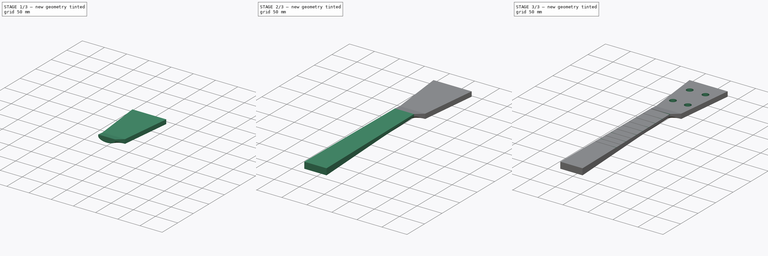
[diagram: build sequence overview — one tinted view per stage of 3, left to right]
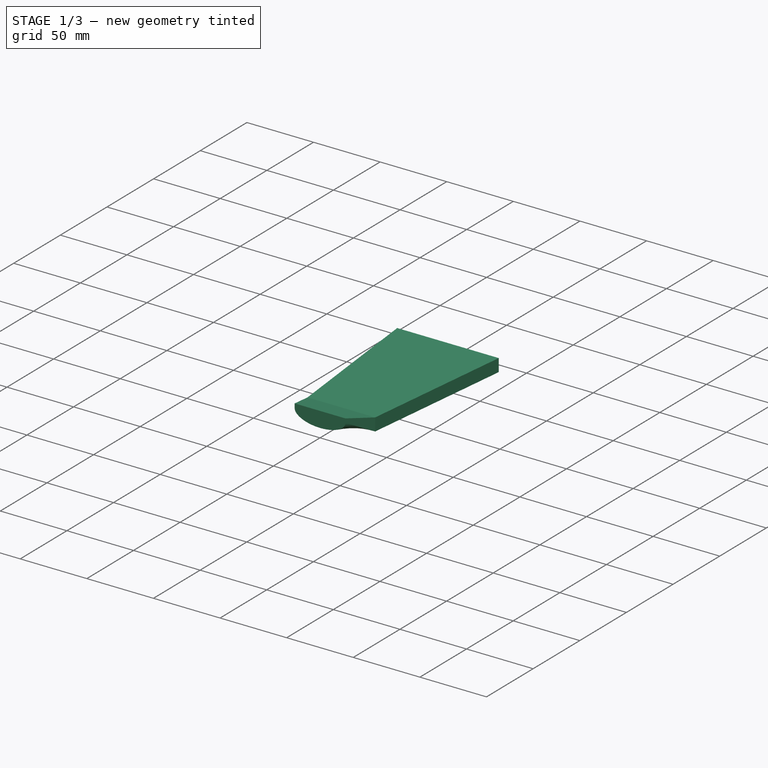
[diagram: stage 1 of 3 — iso view after this stage's code; geometry added in this stage tinted green]
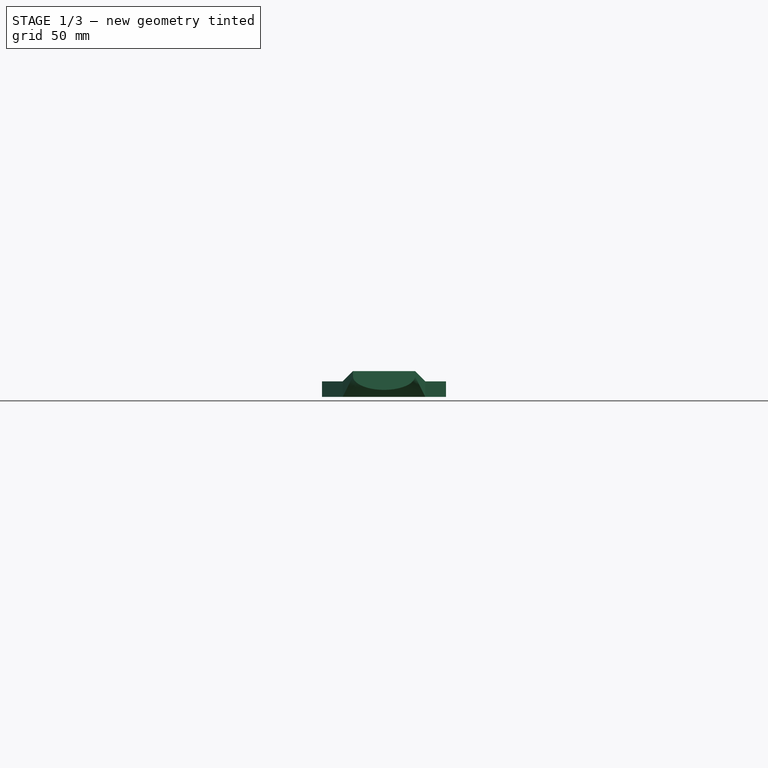
[diagram: stage 1 of 3 — front view after this stage's code; geometry added in this stage tinted green]
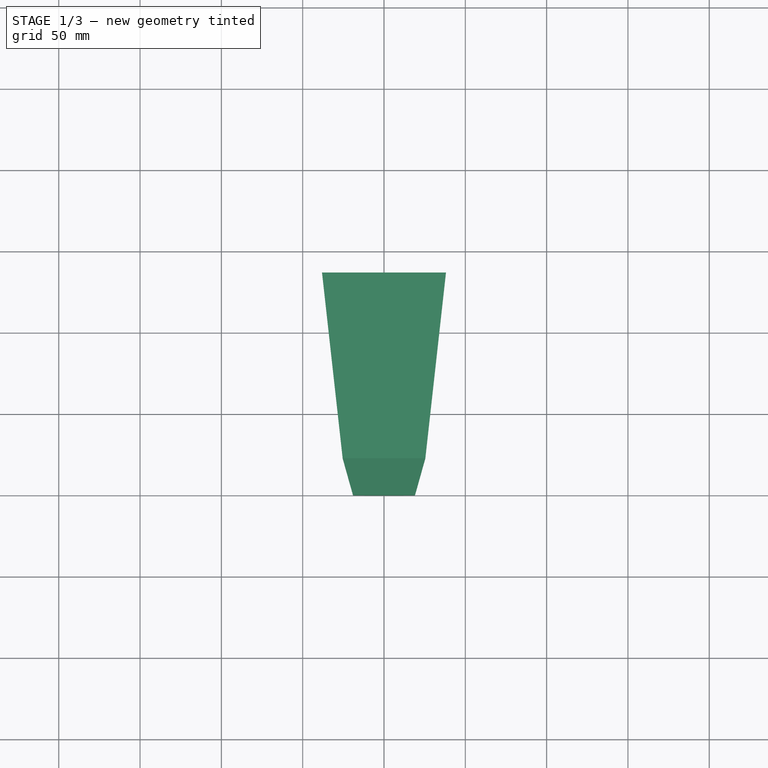
[diagram: stage 1 of 3 — top view after this stage's code; geometry added in this stage tinted green]
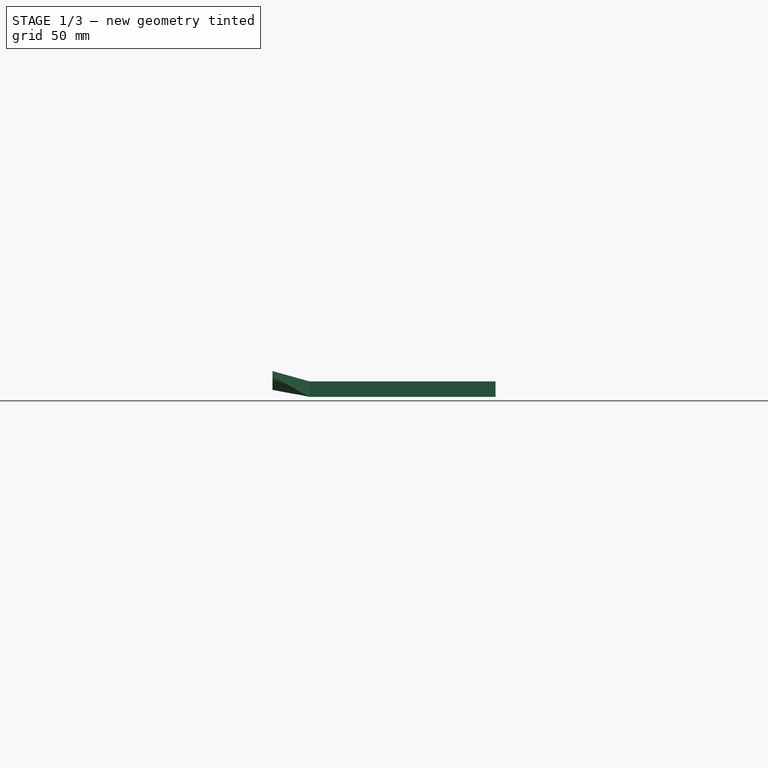
[diagram: stage 1 of 3 — right view after this stage's code; geometry added in this stage tinted green]
FCSTD DOCUMENT  (FreeCAD 0.16R6706 (Git))
Label: neck
License: All rights reserved
LicenseURL: http://en.wikipedia.org/wiki/All_rights_reserved
objects: Sketcher::SketchObject×7, Part::Sweep×3, PartDesign::Pocket×2, Spreadsheet::Sheet×1, App::DocumentObjectGroup×1, Part::MultiFuse×1
note: 15 computed .brp shape members not serialized (recipe doc carries the construction recipe); baked Part::Feature solids carry a one-line shape summary decoded from their .brp

FEATURE [Part::Sweep] Sweep001  label="Headstock Transition"
  Frenet = true
  Sections = -> [Sketch,Sketch002]
  Solid = true
  Spine = -> Sketch004 [Edge2]
  Transition = 1
FEATURE [Part::Sweep] Sweep002  label="Headstock"
  Frenet = true
  Sections = -> [Sketch002,Sketch003]
  Solid = true
  Spine = -> Sketch004 [Edge1]
  Transition = 1
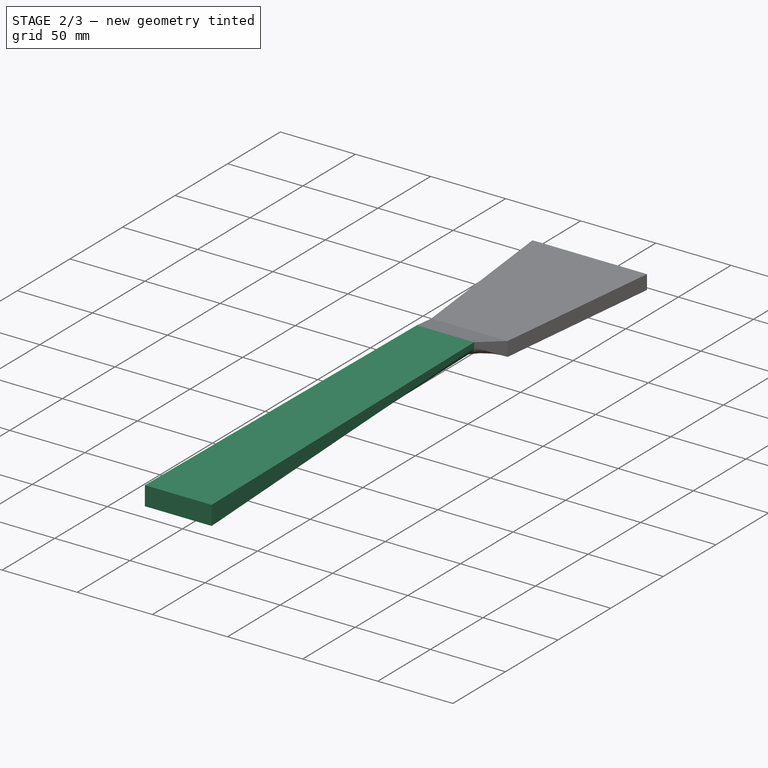
[diagram: stage 2 of 3 — iso view after this stage's code; geometry added in this stage tinted green]
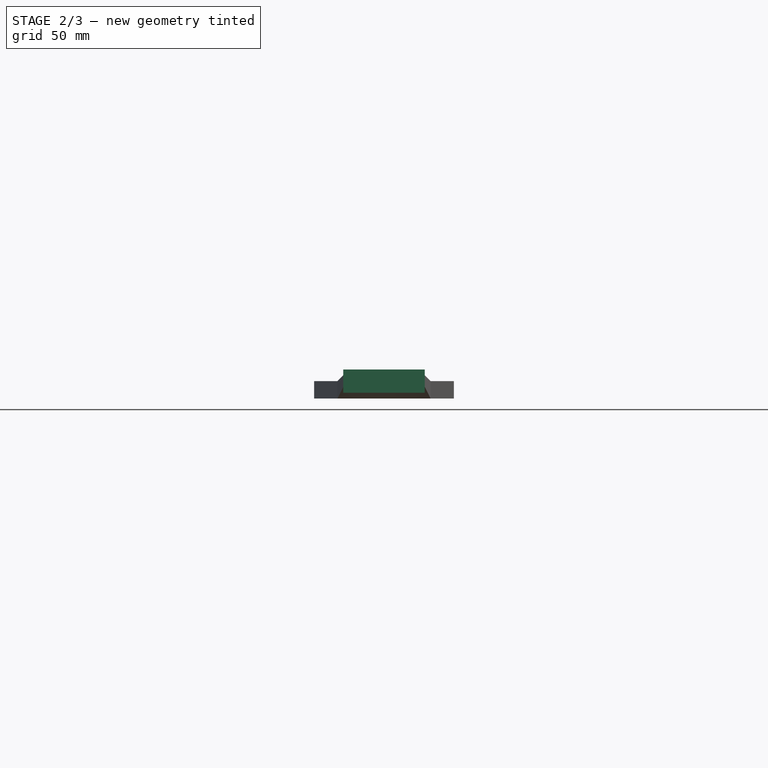
[diagram: stage 2 of 3 — front view after this stage's code; geometry added in this stage tinted green]
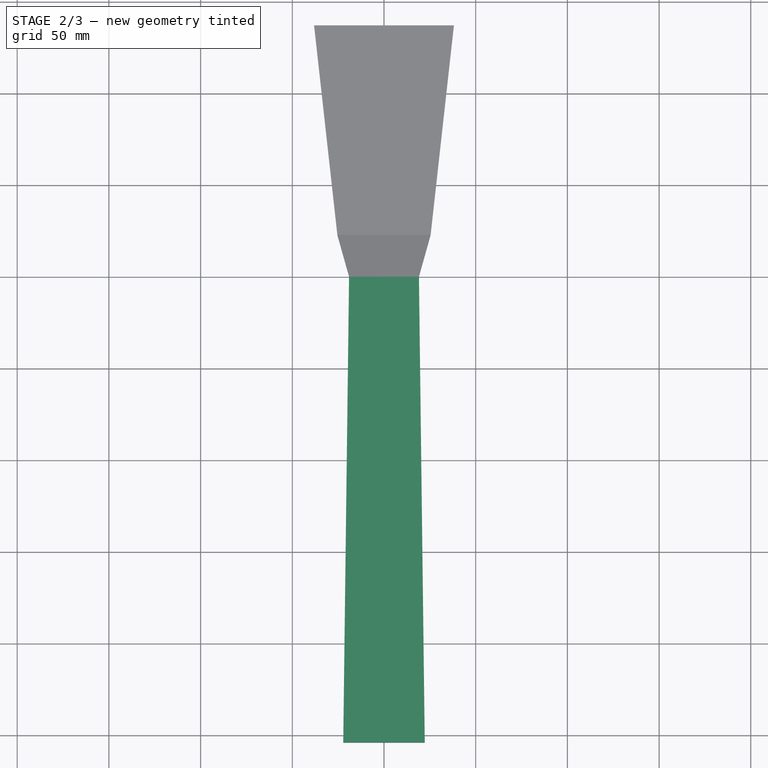
[diagram: stage 2 of 3 — top view after this stage's code; geometry added in this stage tinted green]
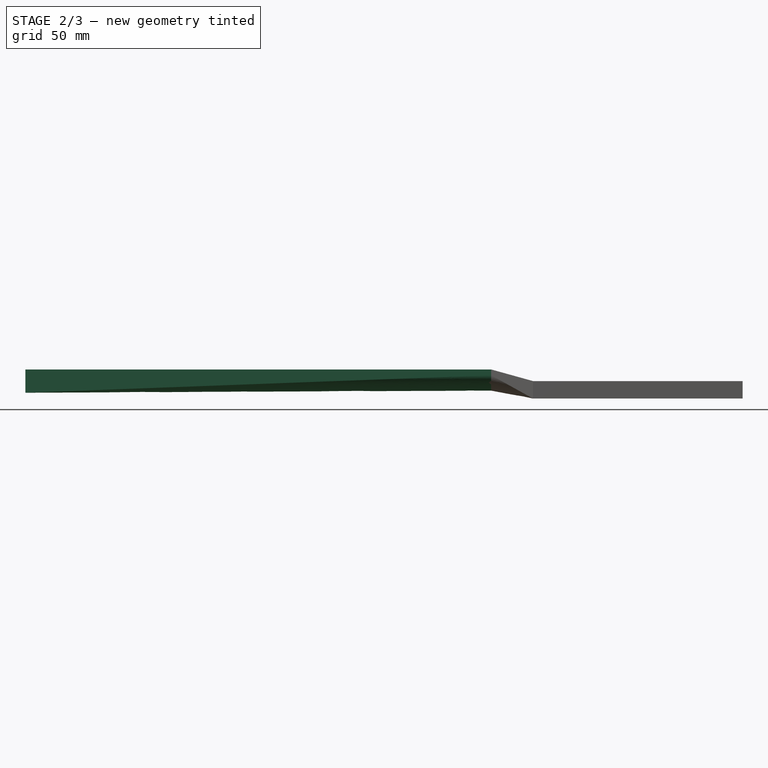
[diagram: stage 2 of 3 — right view after this stage's code; geometry added in this stage tinted green]
FEATURE [Sketcher::SketchObject] Sketch  label="neck_profile_nut"
  Placement = pos=(0,0,0) rot=(1,0,0;1.5708rad)
  expr: Constraints[19] = design.neck_width_nut
  sketch-geometry (10):
    g0: LineSegment StartX=-19.05 StartY=0 StartZ=0 EndX=-19.05 EndY=-3.175 EndZ=0
    g1: LineSegment StartX=19.05 StartY=0 StartZ=0 EndX=19.05 EndY=-3.175 EndZ=0
    g2: LineSegment [constr] StartX=0 StartY=0 StartZ=0 EndX=0 EndY=-3.175 EndZ=0
    g3: ArcOfEllipse CenterX=0 CenterY=-3.175 CenterZ=0 NormalX=0 NormalY=0 NormalZ=1 MajorRadius=19.05 MinorRadius=8.36777 AngleXU=3.14159 StartAngle=0 EndAngle=3.14159
    g4: LineSegment [constr] StartX=-19.05 StartY=-3.175 StartZ=0 EndX=19.05 EndY=-3.175 EndZ=0
    g5: LineSegment [constr] StartX=0 StartY=-11.5428 StartZ=0 EndX=0 EndY=5.19278 EndZ=0
    g6: GeomPoint [constr] X=-17.1138 Y=-3.175 Z=0
    g7: GeomPoint [constr] X=17.1138 Y=-3.175 Z=0
    g8: LineSegment [constr] StartX=0 StartY=-8.83267 StartZ=0 EndX=0 EndY=-11.5428 EndZ=0
    g9: LineSegment StartX=-19.05 StartY=0 StartZ=0 EndX=19.05 EndY=0 EndZ=0
  constraints (19):
    c: Vertical(g0)
    c: Vertical(g1)
    c: Vertical(g2)
    c: Equal(g0,g2)
    c: Equal(g2,g1)
    c: InternalAlignment(g4-g7 -> g3) x4
    c: Coincident(g3,g2)
    c: Coincident(g3,g1)
    c: Coincident(g3,g0)
    c: Vertical(g5)
    c: Distance(g0) = 3.175
    c: Coincident(g5,g8)
    c: PointOnObject(g5,g-2)
    c: PointOnObject(g2,g-1)
    c: Coincident(g9,g1)
    c: Coincident(g9,g0)
    c: Distance(g9) = 38.1
    c: Symmetric(g1,g0,g-2)
    c: PointOnObject(g-1,g9)
FEATURE [Spreadsheet::Sheet] Spreadsheet  label="design"
  cells = A1=Neck Design Worksheet; D2=Fret; A3=Scale Length; B3(scale_length)==15in; D3=1; E3(fret1)==B3 / H3; G3=Temperament; H3=17.817; A4=Neck Length; B4(neck_length)==10in; D4=2; E4(fret2)==E3 + (B3 - E3) / H3; A5=Neck Width (Nut); B5(neck_width_nut)==1.5in; D5=3; E5(fret3)==E4 + (B3 - E4) / H3; A6=Neck Width (Body); B6(neck_width_body)==1.75in; D6=4; E6(fret4)==E5 + (B3 - E5) / H3; A7=Headstock Width (Bottom); B7(headstock_width_bottom)==2in; D7=5; E7(fret5)==E6 + (B3 - E6) / H3; A8=Headstock Width (Top); B8(headstock_width_top)==3in; D8=6; E8(fret6)==E7 + (B3 - E7) / H3; A9=Headstock Thickness; B9(headstock_thickness)==0.375in; D9=7; E9(fret7)==E8 + (B3 - E8) / H3; A10=Headstock Drop; B10(headstock_drop)==0.25in; D10=8; E10(fret8)==E9 + (B3 - E9) / H3; A11=Headstock Length; B11(headstock_length)==4.5in; D11=9; E11(fret9)==E10 + (B3 - E10) / H3; A12=Fret Width; B12(fret_width)==0.03125in; D12=10; E12(fret10)==E11 + (B3 - E11) / H3; A13=Nut Width; B13(nut_width)==0.0625in; D13=11; E13(fret11)==E12 + (B3 - E12) / H3; D14=12; E14(fret12)==E13 + (B3 - E13) / H3; D15=13; E15(fret13)==E14 + (B3 - E14) / H3; D16=14; E16(fret14)==E15 + (B3 - E15) / H3; D17=15; E17(fret15)==E16 + (B3 - E16) / H3; D18=16; E18(fret16)==E17 + (B3 - E17) / H3; D19=17; E19(fret17)==E18 + (B3 - E18) / H3; D20=18; E20(fret18)==E19 + (B3 - E19) / H3
FEATURE [Sketcher::SketchObject] Sketch001  label="neck_profile_body"
  Placement = pos=(0,-254,0) rot=(1,0,0;1.5708rad)
  expr: Placement.Base.y = -design.neck_length
  sketch-geometry (4):
    g0: LineSegment StartX=22.225 StartY=0 StartZ=0 EndX=22.225 EndY=-12.7 EndZ=0
    g1: LineSegment StartX=22.225 StartY=-12.7 StartZ=0 EndX=-22.225 EndY=-12.7 EndZ=0
    g2: LineSegment StartX=-22.225 StartY=-12.7 StartZ=0 EndX=-22.225 EndY=0 EndZ=0
    g3: LineSegment StartX=-22.225 StartY=0 StartZ=0 EndX=22.225 EndY=0 EndZ=0
  constraints (12):
    c: Vertical(g0)
    c: Coincident(g1,g0)
    c: Horizontal(g1)
    c: Coincident(g2,g1)
    c: Vertical(g2)
    c: Distance(g1) = 44.45
    c: Distance(g0) = 12.7
    c: Coincident(g3,g2)
    c: Coincident(g3,g0)
    c: Horizontal(g3)
    c: Symmetric(g0,g2,g-2)
    c: PointOnObject(g-1,g3)
FEATURE [Sketcher::SketchObject] Sketch002  label="headstock_bottom"
  Placement = pos=(0,22.86,0) rot=(1,0,0;1.5708rad)
  expr: Constraints[11] = -design.headstock_drop
  expr: Placement.Base.y = design.headstock_length / 5
  sketch-geometry (4):
    g0: LineSegment StartX=25.4 StartY=-6.35 StartZ=0 EndX=25.4 EndY=-15.875 EndZ=0
    g1: LineSegment StartX=25.4 StartY=-15.875 StartZ=0 EndX=-25.4 EndY=-15.875 EndZ=0
    g2: LineSegment StartX=-25.4 StartY=-15.875 StartZ=0 EndX=-25.4 EndY=-6.35 EndZ=0
    g3: LineSegment StartX=-25.4 StartY=-6.35 StartZ=0 EndX=25.4 EndY=-6.35 EndZ=0
  constraints (12):
    c: Vertical(g0)
    c: Coincident(g1,g0)
    c: Horizontal(g1)
    c: Coincident(g2,g1)
    c: Vertical(g2)
    c: Distance(g0) = 9.525
    c: Distance(g1) = 50.8
    c: Coincident(g3,g2)
    c: Coincident(g3,g0)
    c: Horizontal(g3)
    c: Symmetric(g0,g2,g-2)
    c: DistanceY(g-1,g2) = -6.35
FEATURE [Sketcher::SketchObject] Sketch003  label="headstock_top"
  Placement = pos=(0,137.16,0) rot=(1,0,0;1.5708rad)
  expr: Constraints[11] = -design.headstock_drop
  expr: Placement.Base.y = design.headstock_length / 5 + design.headstock_length
  sketch-geometry (4):
    g0: LineSegment StartX=38.1 StartY=-6.35 StartZ=0 EndX=38.1 EndY=-15.875 EndZ=0
    g1: LineSegment StartX=38.1 StartY=-15.875 StartZ=0 EndX=-38.1 EndY=-15.875 EndZ=0
    g2: LineSegment StartX=-38.1 StartY=-15.875 StartZ=0 EndX=-38.1 EndY=-6.35 EndZ=0
    g3: LineSegment StartX=-38.1 StartY=-6.35 StartZ=0 EndX=38.1 EndY=-6.35 EndZ=0
  constraints (12):
    c: Vertical(g0)
    c: Coincident(g1,g0)
    c: Horizontal(g1)
    c: Coincident(g2,g1)
    c: Vertical(g2)
    c: Distance(g0) = 9.525
    c: Distance(g1) = 76.2
    c: Coincident(g3,g2)
    c: Coincident(g3,g0)
    c: Horizontal(g3)
    c: Symmetric(g2,g0,g-2)
    c: DistanceY(g-1,g2) = -6.35
FEATURE [App::DocumentObjectGroup] Group  label="Cross Sections"
  Group = -> [Sketch001,Sketch002,Sketch003,Sketch]
FEATURE [Sketcher::SketchObject] Sketch004  label="backbone"
  Placement = pos=(0,0,0) rot=(0.57735,0.57735,0.57735;2.0944rad)
  expr: Constraints[8] = design.headstock_length
  expr: Constraints[5] = design.headstock_length / 5
  expr: Constraints[4] = -1 * design.headstock_drop
  expr: Constraints[2] = design.neck_length
  sketch-geometry (3):
    g0: LineSegment StartX=0 StartY=0 StartZ=0 EndX=-254 EndY=0 EndZ=0
    g1: LineSegment StartX=0 StartY=0 StartZ=0 EndX=22.86 EndY=-6.35 EndZ=0
    g2: LineSegment StartX=22.86 StartY=-6.35 StartZ=0 EndX=137.16 EndY=-6.35 EndZ=0
  constraints (9):
    c: Coincident(g0,g-1)
    c: Horizontal(g0)
    c: Distance(g0) = 254
    c: Coincident(g1,g-1)
    c: DistanceY(g-1,g1) = -6.35
    c: DistanceX(g-2,g1) = 22.86
    c: Coincident(g2,g1)
    c: Horizontal(g2)
    c: Distance(g2) = 114.3
FEATURE [Part::Sweep] Sweep  label="Neck"
  Frenet = true
  Sections = -> [Sketch001,Sketch]
  Solid = true
  Spine = -> Sketch004 [Edge3]
  Transition = 2
FEATURE [Part::MultiFuse] Fusion
  Shapes = -> [Sweep,Sweep001,Sweep002]
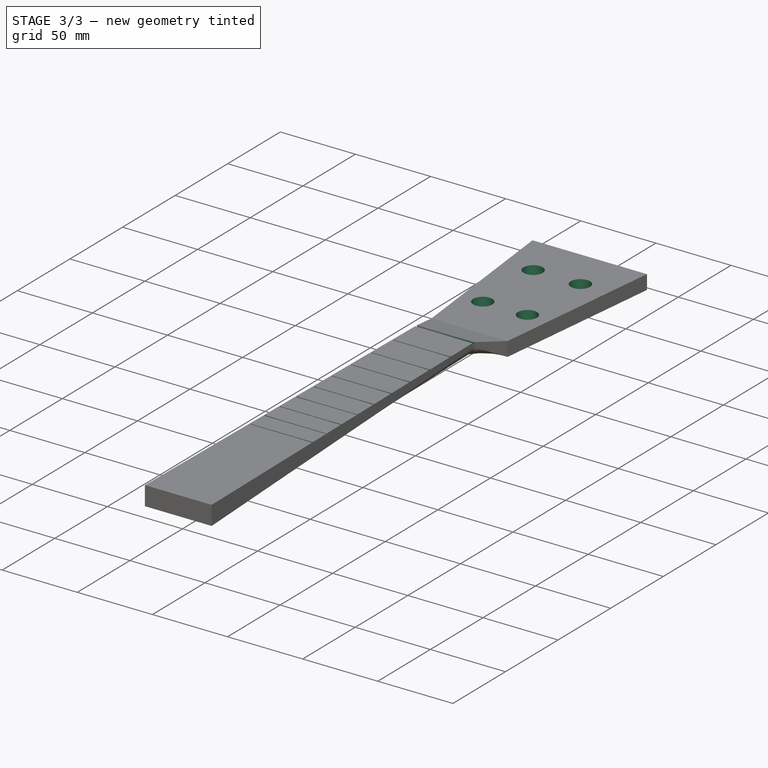
[diagram: stage 3 of 3 — iso view after this stage's code; geometry added in this stage tinted green]
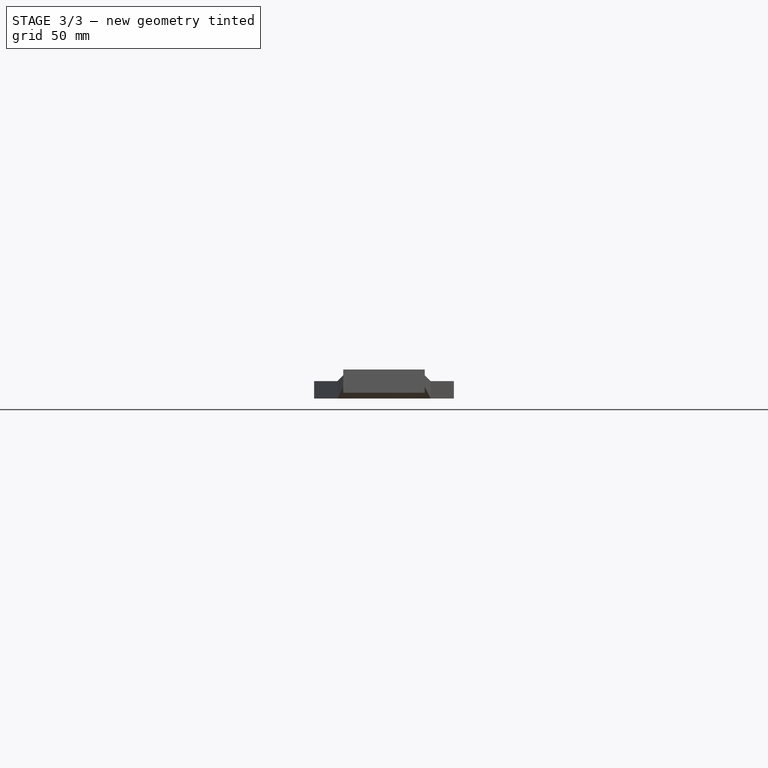
[diagram: stage 3 of 3 — front view after this stage's code; geometry added in this stage tinted green]
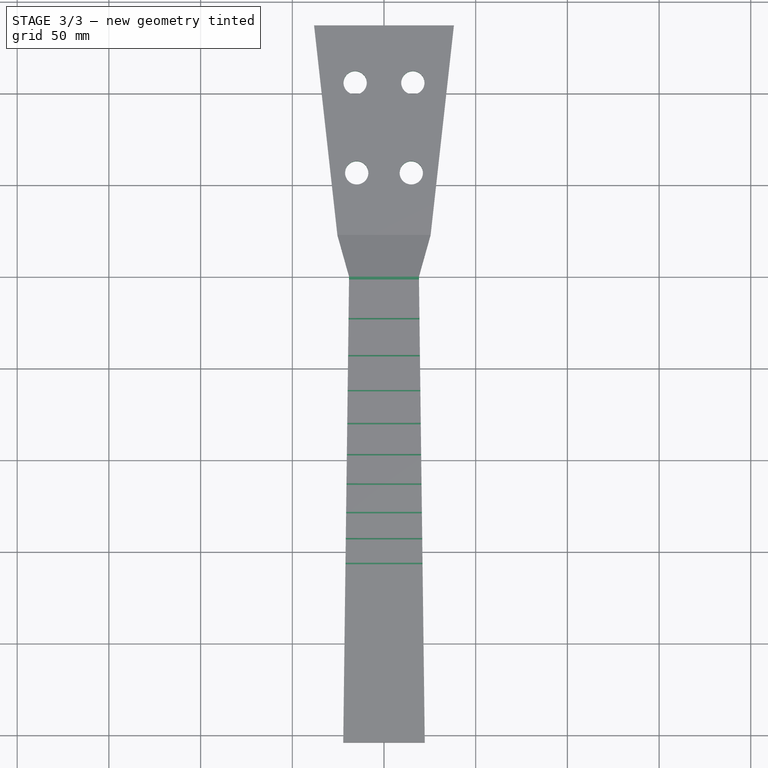
[diagram: stage 3 of 3 — top view after this stage's code; geometry added in this stage tinted green]
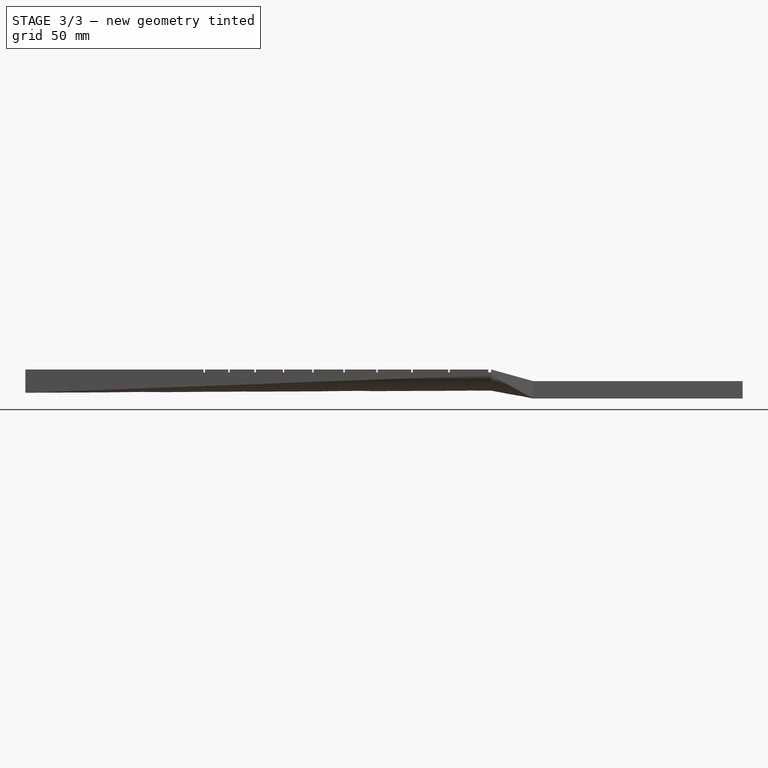
[diagram: stage 3 of 3 — right view after this stage's code; geometry added in this stage tinted green]
FEATURE [Sketcher::SketchObject] Sketch006  label="frets"
  Support = -> Fusion [Face13]
  expr: Constraints[99] = design.fret9
  expr: Constraints[98] = design.fret8
  expr: Constraints[97] = design.fret7
  expr: Constraints[68] = design.fret6
  expr: Constraints[58] = design.fret5
  expr: Constraints[43] = design.fret4
  expr: Constraints[21] = design.fret_width
  expr: Constraints[35] = design.fret2
  expr: Constraints[34] = design.fret1
  expr: Constraints[36] = design.fret3
  expr: Constraints[31] = design.nut_width
  sketch-geometry (40):
    g0: ArcOfCircle CenterX=-22.225 CenterY=-22.9716 CenterZ=0 NormalX=0 NormalY=0 NormalZ=1 Radius=0.396875 StartAngle=1.5708 EndAngle=4.71239
    g1: ArcOfCircle CenterX=22.225 CenterY=-22.9716 CenterZ=0 NormalX=0 NormalY=0 NormalZ=1 Radius=0.396875 StartAngle=4.71239 EndAngle=7.85398
    g2: LineSegment StartX=-22.225 StartY=-23.3684 StartZ=0 EndX=22.225 EndY=-23.3684 EndZ=0
    g3: LineSegment StartX=-22.225 StartY=-22.5747 StartZ=0 EndX=22.225 EndY=-22.5747 EndZ=0
    g4: ArcOfCircle CenterX=-22.225 CenterY=-43.1554 CenterZ=0 NormalX=0 NormalY=0 NormalZ=1 Radius=0.396875 StartAngle=1.5708 EndAngle=4.71239
    g5: ArcOfCircle CenterX=22.225 CenterY=-43.1554 CenterZ=0 NormalX=0 NormalY=0 NormalZ=1 Radius=0.396875 StartAngle=4.71239 EndAngle=7.85398
    g6: LineSegment StartX=-22.225 StartY=-43.5523 StartZ=0 EndX=22.225 EndY=-43.5523 EndZ=0
    g7: LineSegment StartX=-22.225 StartY=-42.7586 StartZ=0 EndX=22.225 EndY=-42.7586 EndZ=0
    g8: ArcOfCircle CenterX=-22.225 CenterY=-62.2065 CenterZ=0 NormalX=0 NormalY=0 NormalZ=1 Radius=0.396875 StartAngle=1.5708 EndAngle=4.71239
    g9: ArcOfCircle CenterX=22.225 CenterY=-62.2065 CenterZ=0 NormalX=0 NormalY=0 NormalZ=1 Radius=0.396875 StartAngle=4.71239 EndAngle=7.85398
    g10: LineSegment StartX=-22.225 StartY=-62.6033 StartZ=0 EndX=22.225 EndY=-62.6033 EndZ=0
    g11: LineSegment StartX=-22.225 StartY=-61.8096 StartZ=0 EndX=22.225 EndY=-61.8096 EndZ=0
    g12: ArcOfCircle CenterX=-22.225 CenterY=-0.79375 CenterZ=0 NormalX=0 NormalY=0 NormalZ=1 Radius=0.79375 StartAngle=1.5708 EndAngle=4.71239
    g13: ArcOfCircle CenterX=22.225 CenterY=-0.79375 CenterZ=0 NormalX=0 NormalY=0 NormalZ=1 Radius=0.79375 StartAngle=4.71239 EndAngle=7.85398
    g14: LineSegment StartX=-22.225 StartY=-1.5875 StartZ=0 EndX=22.225 EndY=-1.5875 EndZ=0
    g15: LineSegment StartX=-22.225 StartY=0 StartZ=0 EndX=22.225 EndY=0 EndZ=0
    g16: ArcOfCircle CenterX=-22.225 CenterY=-80.1882 CenterZ=0 NormalX=0 NormalY=0 NormalZ=1 Radius=0.396875 StartAngle=1.5708 EndAngle=4.71239
    g17: ArcOfCircle CenterX=22.225 CenterY=-80.1882 CenterZ=0 NormalX=0 NormalY=0 NormalZ=1 Radius=0.396875 StartAngle=4.71239 EndAngle=7.85398
    g18: LineSegment StartX=-22.225 StartY=-80.5851 StartZ=0 EndX=22.225 EndY=-80.5851 EndZ=0
    g19: LineSegment StartX=-22.225 StartY=-79.7913 StartZ=0 EndX=22.225 EndY=-79.7913 EndZ=0
    g20: ArcOfCircle CenterX=-22.225 CenterY=-97.1607 CenterZ=0 NormalX=0 NormalY=0 NormalZ=1 Radius=0.396875 StartAngle=1.5708 EndAngle=4.71239
    g21: ArcOfCircle CenterX=22.225 CenterY=-97.1607 CenterZ=0 NormalX=0 NormalY=0 NormalZ=1 Radius=0.396875 StartAngle=4.71239 EndAngle=7.85398
    g22: LineSegment StartX=-22.225 StartY=-97.5576 StartZ=0 EndX=22.225 EndY=-97.5576 EndZ=0
    g23: LineSegment StartX=-22.225 StartY=-96.7639 StartZ=0 EndX=22.225 EndY=-96.7639 EndZ=0
    g24: ArcOfCircle CenterX=22.225 CenterY=-113.181 CenterZ=0 NormalX=0 NormalY=0 NormalZ=1 Radius=0.396875 StartAngle=4.71239 EndAngle=7.85398
    g25: ArcOfCircle CenterX=-22.225 CenterY=-113.181 CenterZ=0 NormalX=0 NormalY=0 NormalZ=1 Radius=0.396875 StartAngle=1.5708 EndAngle=4.71239
    g26: LineSegment StartX=22.225 StartY=-112.784 StartZ=0 EndX=-22.225 EndY=-112.784 EndZ=0
    g27: LineSegment StartX=22.225 StartY=-113.578 StartZ=0 EndX=-22.225 EndY=-113.578 EndZ=0
    g28: ArcOfCircle CenterX=-22.225 CenterY=-128.698 CenterZ=0 NormalX=0 NormalY=0 NormalZ=1 Radius=0.396875 StartAngle=1.5708 EndAngle=4.71239
    g29: ArcOfCircle CenterX=22.225 CenterY=-128.698 CenterZ=0 NormalX=0 NormalY=0 NormalZ=1 Radius=0.396875 StartAngle=4.71239 EndAngle=7.85398
    g30: LineSegment StartX=-22.225 StartY=-129.095 StartZ=0 EndX=22.225 EndY=-129.095 EndZ=0
    g31: LineSegment StartX=-22.225 StartY=-128.301 StartZ=0 EndX=22.225 EndY=-128.301 EndZ=0
    g32: ArcOfCircle CenterX=-22.225 CenterY=-142.97 CenterZ=0 NormalX=0 NormalY=0 NormalZ=1 Radius=0.396875 StartAngle=1.5708 EndAngle=4.71239
    g33: ArcOfCircle CenterX=22.225 CenterY=-142.97 CenterZ=0 NormalX=0 NormalY=0 NormalZ=1 Radius=0.396875 StartAngle=4.71239 EndAngle=7.85398
    g34: LineSegment StartX=-22.225 StartY=-143.367 StartZ=0 EndX=22.225 EndY=-143.367 EndZ=0
    g35: LineSegment StartX=-22.225 StartY=-142.574 StartZ=0 EndX=22.225 EndY=-142.574 EndZ=0
    g36: ArcOfCircle CenterX=-22.225 CenterY=-156.441 CenterZ=0 NormalX=0 NormalY=0 NormalZ=1 Radius=0.396875 StartAngle=1.5708 EndAngle=4.71239
    g37: ArcOfCircle CenterX=22.225 CenterY=-156.441 CenterZ=0 NormalX=0 NormalY=0 NormalZ=1 Radius=0.396875 StartAngle=4.71239 EndAngle=7.85398
    g38: LineSegment StartX=-22.225 StartY=-156.838 StartZ=0 EndX=22.225 EndY=-156.838 EndZ=0
    g39: LineSegment StartX=-22.225 StartY=-156.045 StartZ=0 EndX=22.225 EndY=-156.045 EndZ=0
  constraints (100):
    c: Tangent(g0,g3) = 1.5708
    c: Tangent(g0,g2) = -1.5708
    c: Tangent(g2,g1) = -1.5708
    c: Tangent(g3,g1) = 1.5708
    c: Horizontal(g2)
    c: Equal(g0,g1)
    c: Tangent(g4,g7) = 1.5708
    c: Tangent(g4,g6) = -1.5708
    c: Tangent(g6,g5) = -1.5708
    c: Tangent(g7,g5) = 1.5708
    c: Horizontal(g6)
    c: Equal(g4,g5)
    c: Tangent(g8,g11) = 1.5708
    c: Tangent(g8,g10) = -1.5708
    c: Tangent(g10,g9) = -1.5708
    c: Tangent(g11,g9) = 1.5708
    c: Horizontal(g10)
    c: Equal(g8,g9)
    c: Symmetric(g8,g9,g-2)
    c: Symmetric(g4,g5,g-2)
    c: Symmetric(g0,g1,g-2)
    c: Distance(g0,g0) = 0.79375
    c: Equal(g0,g4)
    c: Equal(g4,g8)
    c: Tangent(g12,g15) = 1.5708
    c: Tangent(g12,g14) = -1.5708
    c: Tangent(g14,g13) = -1.5708
    c: Tangent(g15,g13) = 1.5708
    c: Horizontal(g14)
    c: Equal(g12,g13)
    c: PointOnObject(g-1,g15)
    c: Distance(g12,g12) = 1.5875
    c: Distance(g15) = 44.45
    c: Symmetric(g13,g12,g-2)
    c: Distance(g1,g14) = 21.3841
    c: Distance(g5,g14) = 41.5679
    c: Distance(g9,g14) = 60.619
    c: Tangent(g16,g19) = 1.5708
    c: Tangent(g16,g18) = -1.5708
    c: Tangent(g18,g17) = -1.5708
    c: Tangent(g19,g17) = 1.5708
    c: Horizontal(g18)
    c: Equal(g16,g17)
    c: Distance(g17,g14) = 78.6007
    c: Equal(g16,g8)
    c: Symmetric(g16,g17,g-2)
    c: Equal(g19,g11)
    c: Equal(g11,g7)
    c: Equal(g7,g3)
    c: Equal(g3,g15)
    c: Tangent(g20,g23) = 1.5708
    c: Tangent(g20,g22) = -1.5708
    c: Tangent(g22,g21) = -1.5708
    c: Tangent(g23,g21) = 1.5708
    c: Horizontal(g22)
    c: Equal(g20,g21)
    c: Symmetric(g20,g21,g-2)
    c: Equal(g20,g16)
    c: Distance(g21,g14) = 95.5732
    c: Equal(g23,g19)
    c: Tangent(g24,g27) = 1.5708
    c: Tangent(g24,g26) = -1.5708
    c: Tangent(g26,g25) = -1.5708
    c: Tangent(g27,g25) = 1.5708
    c: Horizontal(g26)
    c: Equal(g24,g25)
    c: Equal(g26,g23)
    c: Symmetric(g24,g25,g-2)
    c: Distance(g24,g14) = 111.593
    c: Equal(g25,g20)
    c: Tangent(g28,g31) = 1.5708
    c: Tangent(g28,g30) = -1.5708
    c: Tangent(g30,g29) = -1.5708
    c: Tangent(g31,g29) = 1.5708
    c: Horizontal(g30)
    c: Equal(g28,g29)
    c: Tangent(g32,g35) = 1.5708
    c: Tangent(g32,g34) = -1.5708
    c: Tangent(g34,g33) = -1.5708
    c: Tangent(g35,g33) = 1.5708
    c: Horizontal(g34)
    c: Equal(g32,g33)
    c: Tangent(g36,g39) = 1.5708
    c: Tangent(g36,g38) = -1.5708
    c: Tangent(g38,g37) = -1.5708
    c: Tangent(g39,g37) = 1.5708
    c: Horizontal(g38)
    c: Equal(g36,g37)
    c: Symmetric(g33,g32,g-2)
    c: Symmetric(g29,g28,g-2)
    c: Symmetric(g37,g36,g-2)
    c: Equal(g31,g26)
    c: Equal(g35,g26)
    c: Equal(g39,g26)
    c: Equal(g28,g25)
    c: Equal(g32,g28)
    c: Equal(g36,g32)
    c: Distance(g29,g14) = 126.714
    c: Distance(g33,g14) = 140.986
    c: Distance(g37,g14) = 154.457
FEATURE [PartDesign::Pocket] Pocket
  Length = 1.5875
  Sketch = -> Sketch006
  Type = 0
FEATURE [Sketcher::SketchObject] Sketch005  label="tuning_peg_holes"
  Placement = pos=(0,0,-6.35) rot=(0,0,1;0rad)
  Support = -> Pocket [Face5]
  sketch-geometry (6):
    g0: LineSegment [constr] StartX=14.8783 StartY=56.7307 StartZ=0 EndX=-14.8783 EndY=56.7307 EndZ=0
    g1: LineSegment [constr] StartX=-15.7342 StartY=105.856 StartZ=0 EndX=15.7342 EndY=105.856 EndZ=0
    g2: Circle CenterX=15.7342 CenterY=105.856 CenterZ=0 NormalX=0 NormalY=0 NormalZ=1 Radius=6.35
    g3: Circle CenterX=-15.7342 CenterY=105.856 CenterZ=0 NormalX=0 NormalY=0 NormalZ=1 Radius=6.35
    g4: Circle CenterX=-14.8783 CenterY=56.7307 CenterZ=0 NormalX=0 NormalY=0 NormalZ=1 Radius=6.35
    g5: Circle CenterX=14.8783 CenterY=56.7307 CenterZ=0 NormalX=0 NormalY=0 NormalZ=1 Radius=6.35
  constraints (12):
    c: Horizontal(g0)
    c: Horizontal(g1)
    c: Symmetric(g1,g1,g-2)
    c: Symmetric(g0,g0,g-2)
    c: Coincident(g2,g1)
    c: Coincident(g3,g1)
    c: Coincident(g4,g0)
    c: Coincident(g5,g0)
    c: Radius(g2) = 6.35
    c: Equal(g2,g3)
    c: Equal(g3,g4)
    c: Equal(g4,g5)
FEATURE [PartDesign::Pocket] Pocket001
  Length = 5
  Sketch = -> Sketch005
  Type = 1
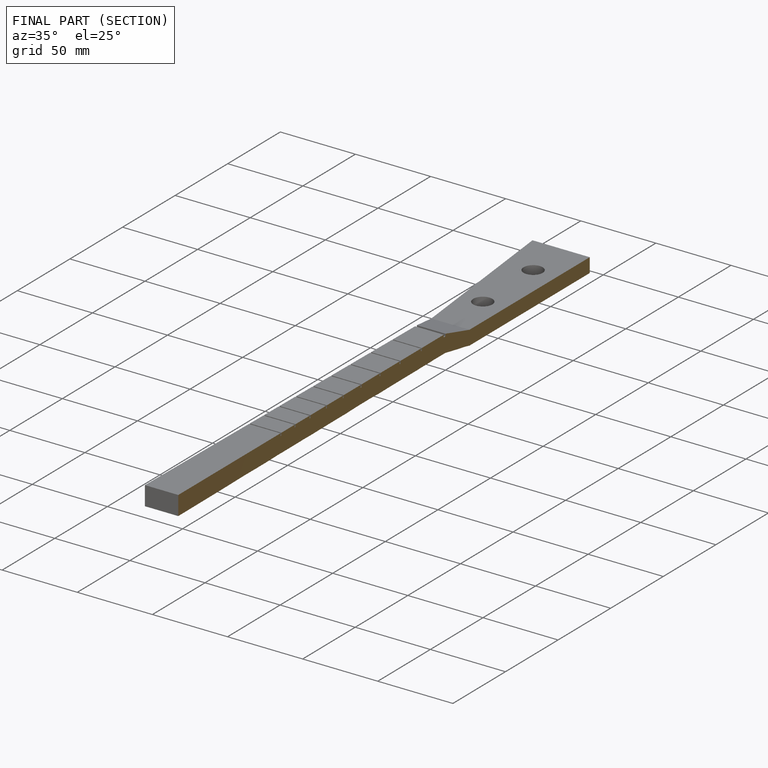
[diagram: finished part — half-section view (interior)]
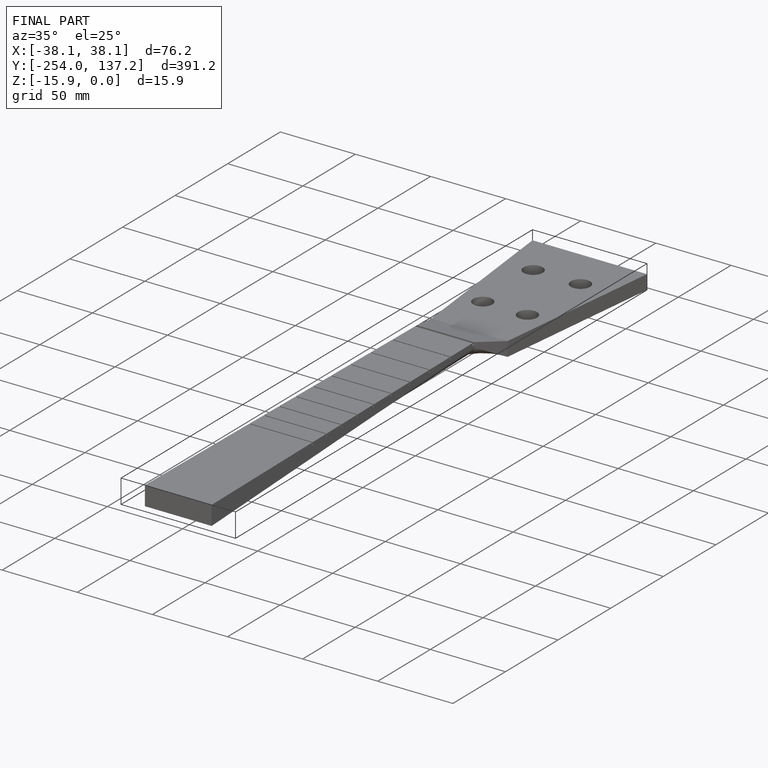
[diagram: finished part — iso view with bounding-box wireframe]
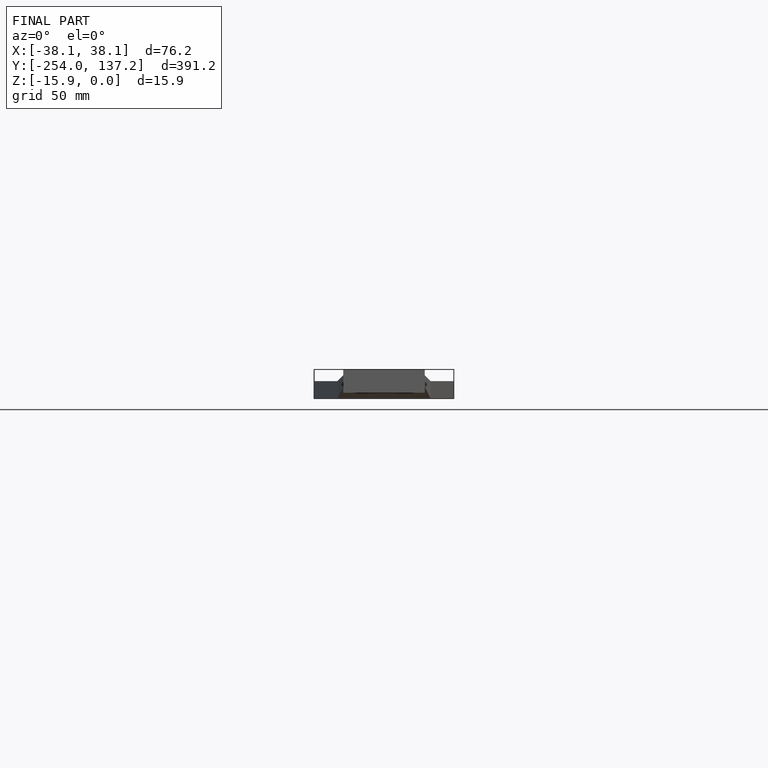
[diagram: finished part — front view with bounding-box wireframe]
